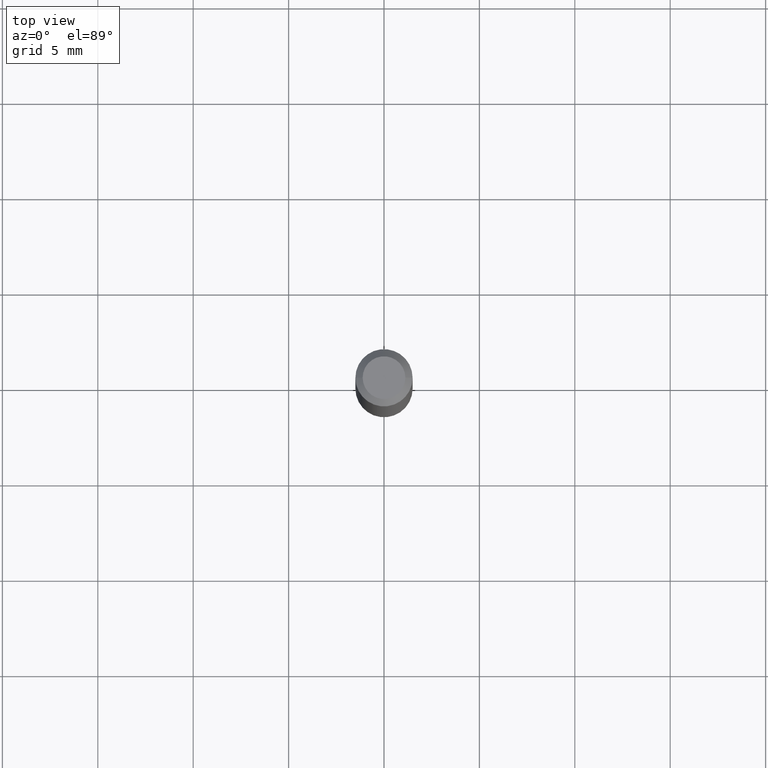
[diagram: clean part render]
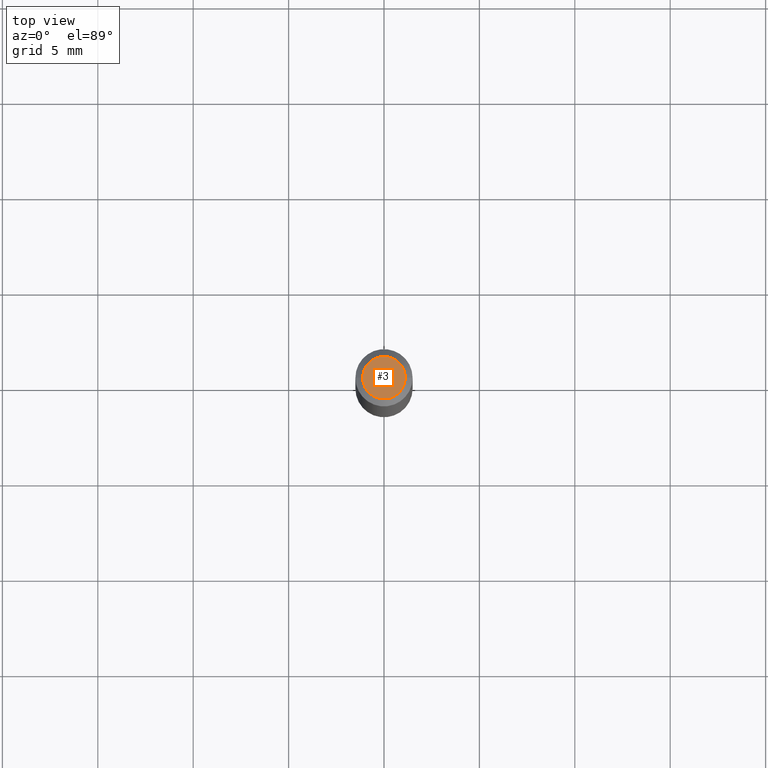
[diagram: same view with one face highlighted and labeled with its STEP entity id]
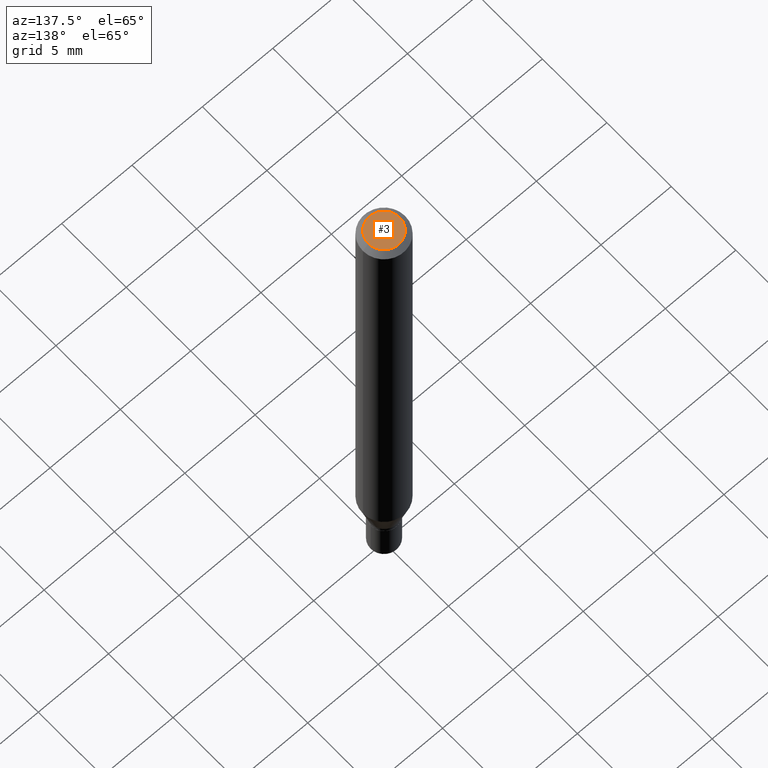
[diagram: same view with one face highlighted and labeled with its STEP entity id]
A machine part, top view. The second image highlights one B-rep face of the part: STEP entity #3.
A second angle (auxiliary view) of the same face is appended — the face is thin or edge-on in the first view.
In plain terms, the highlighted planar face has unit normal (0, -0, -1).
Its self-contained STEP definition (entity closure, byte-faithful):
#1 = DIRECTION ( 'NONE',  ( 1.000000000000000000, -6.982962677686265922E-15, 4.888540261209747396E-29 ) ) ;
#3 = ADVANCED_FACE ( 'NONE', ( #71 ), #383, .F. ) ;
#17 = DIRECTION ( 'NONE',  ( 1.000000000000000000, -6.982962677686265922E-15, 4.888540261209747396E-29 ) ) ;
#30 = CIRCLE ( 'NONE', #207, 0.04404999999999999888 ) ;
#59 = EDGE_CURVE ( 'NONE', #454, #438, #30, .T. ) ;
#60 = DIRECTION ( 'NONE',  ( -1.000000000000000000, 6.982962677686265922E-15, -4.876176775795935793E-29 ) ) ;
#71 = FACE_OUTER_BOUND ( 'NONE', #220, .T. ) ;
#131 = CARTESIAN_POINT ( 'NONE',  ( 3.075995059520799729E-16, 0.04404999999999999888, -9.443317881941664879E-17 ) ) ;
#166 = CARTESIAN_POINT ( 'NONE',  ( -2.903582104602009454E-45, 4.145545716378002760E-31, 1.187331483132478339E-16 ) ) ;
#207 = AXIS2_PLACEMENT_3D ( 'NONE', #166, #280, #1 ) ;
#220 = EDGE_LOOP ( 'NONE', ( #262, #312 ) ) ;
#224 = CARTESIAN_POINT ( 'NONE',  ( -2.903582104602009454E-45, 4.145545716378002760E-31, 1.187331483132478339E-16 ) ) ;
#238 = CARTESIAN_POINT ( 'NONE',  ( -0.04404999999999999888, 3.337856159934036604E-16, 1.187331483132455906E-16 ) ) ;
#262 = ORIENTED_EDGE ( 'NONE', *, *, #395, .T. ) ;
#280 = DIRECTION ( 'NONE',  ( -2.445468806185136597E-29, 3.491481338843145583E-15, 1.000000000000000000 ) ) ;
#291 = CIRCLE ( 'NONE', #408, 0.04404999999999999888 ) ;
#312 = ORIENTED_EDGE ( 'NONE', *, *, #59, .T. ) ;
#372 = DIRECTION ( 'NONE',  ( -2.445468806185136597E-29, 3.491481338843145583E-15, 1.000000000000000000 ) ) ;
#383 = PLANE ( 'NONE',  #421 ) ;
#395 = EDGE_CURVE ( 'NONE', #438, #454, #291, .T. ) ;
#408 = AXIS2_PLACEMENT_3D ( 'NONE', #224, #372, #17 ) ;
#418 = CARTESIAN_POINT ( 'NONE',  ( 0.04404999999999999888, -3.798447818264458600E-16, 1.187331483132502252E-16 ) ) ;
#421 = AXIS2_PLACEMENT_3D ( 'NONE', #131, #465, #60 ) ;
#438 = VERTEX_POINT ( 'NONE', #238 ) ;
#454 = VERTEX_POINT ( 'NONE', #418 ) ;
#465 = DIRECTION ( 'NONE',  ( 2.438088387897960049E-29, -3.491481338843145188E-15, -1.000000000000000000 ) ) ;